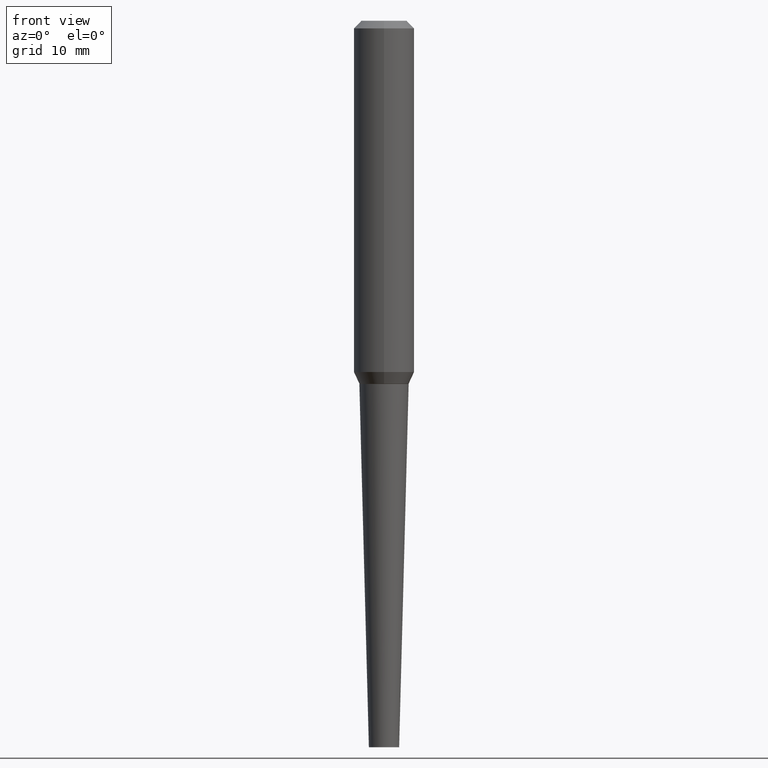
[diagram: clean part render]
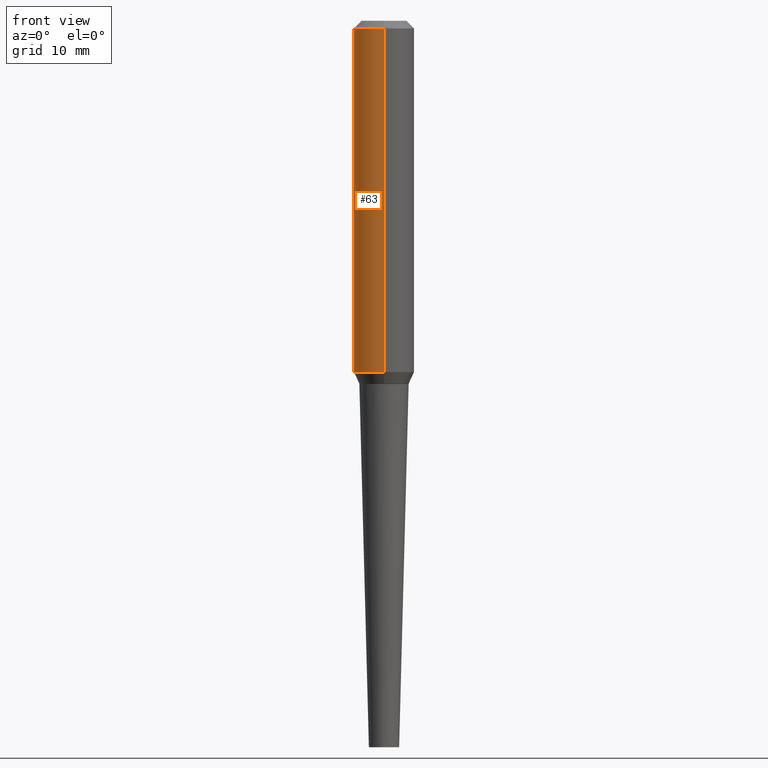
[diagram: same view with one face highlighted and labeled with its STEP entity id]
A machine part, front view. The second image highlights one B-rep face of the part: STEP entity #63.
In plain terms, the highlighted cylindrical surface (edge-blend (fillet) strip) has radius 3.175 mm, axis along (-0, 0, 1).
Its self-contained STEP definition (entity closure, byte-faithful):
#44 = FACE_OUTER_BOUND ( 'NONE', #283, .T. ) ;
#45 = ORIENTED_EDGE ( 'NONE', *, *, #56, .F. ) ;
#51 = DIRECTION ( 'NONE',  ( -6.982962677686265922E-15, -1.000000000000000000, 3.238349681636345134E-15 ) ) ;
#52 = VERTEX_POINT ( 'NONE', #295 ) ;
#56 = EDGE_CURVE ( 'NONE', #125, #52, #374, .T. ) ;
#62 = DIRECTION ( 'NONE',  ( -2.622229697666732842E-29, 3.238349681636345134E-15, 1.000000000000000000 ) ) ;
#63 = ADVANCED_FACE ( 'NONE', ( #44 ), #275, .T. ) ;
#103 = CARTESIAN_POINT ( 'NONE',  ( -3.397982428467408395E-30, -4.866104238714468673E-16, 1.912385453283800096E-17 ) ) ;
#104 = ORIENTED_EDGE ( 'NONE', *, *, #387, .T. ) ;
#113 = DIRECTION ( 'NONE',  ( -2.622229697666732842E-29, 3.238349681636345134E-15, 1.000000000000000000 ) ) ;
#115 = DIRECTION ( 'NONE',  ( -6.982962677686265133E-15, -1.000000000000000000, 2.185478394931408603E-15 ) ) ;
#119 = VERTEX_POINT ( 'NONE', #366 ) ;
#121 = CARTESIAN_POINT ( 'NONE',  ( 8.881784197001425873E-16, 0.1249999999999949069, -1.450202152505693176 ) ) ;
#125 = VERTEX_POINT ( 'NONE', #299 ) ;
#129 = AXIS2_PLACEMENT_3D ( 'NONE', #216, #62, #115 ) ;
#148 = EDGE_CURVE ( 'NONE', #345, #125, #203, .T. ) ;
#180 = DIRECTION ( 'NONE',  ( -2.622229697666732842E-29, 3.238349681636345134E-15, 1.000000000000000000 ) ) ;
#203 = LINE ( 'NONE', #332, #381 ) ;
#210 = CIRCLE ( 'NONE', #129, 0.1250000000000001110 ) ;
#216 = CARTESIAN_POINT ( 'NONE',  ( 3.462964909073907337E-29, -5.182872102746599262E-15, -1.450202152505692732 ) ) ;
#242 = AXIS2_PLACEMENT_3D ( 'NONE', #340, #335, #398 ) ;
#249 = AXIS2_PLACEMENT_3D ( 'NONE', #103, #404, #51 ) ;
#275 = CYLINDRICAL_SURFACE ( 'NONE', #249, 0.1250000000000003053 ) ;
#283 = EDGE_LOOP ( 'NONE', ( #331, #312, #104, #45 ) ) ;
#284 = LINE ( 'NONE', #376, #313 ) ;
#295 = CARTESIAN_POINT ( 'NONE',  ( -8.575622497214472631E-16, -0.1250000000000010825, -0.03124999999999967040 ) ) ;
#299 = CARTESIAN_POINT ( 'NONE',  ( 8.728703347107841277E-16, 0.1249999999999999167, -0.03125000000000047878 ) ) ;
#312 = ORIENTED_EDGE ( 'NONE', *, *, #397, .T. ) ;
#313 = VECTOR ( 'NONE', #180, 39.37007874015748143 ) ;
#331 = ORIENTED_EDGE ( 'NONE', *, *, #148, .F. ) ;
#332 = CARTESIAN_POINT ( 'NONE',  ( 8.881784197001238518E-16, 0.1249999999999998335, -3.856698556717061268E-16 ) ) ;
#335 = DIRECTION ( 'NONE',  ( -2.622229697666732842E-29, 3.238349681636345134E-15, 1.000000000000000000 ) ) ;
#340 = CARTESIAN_POINT ( 'NONE',  ( -2.578535647946551579E-30, -5.878088514225828376E-16, -0.03125000000000007633 ) ) ;
#345 = VERTEX_POINT ( 'NONE', #121 ) ;
#366 = CARTESIAN_POINT ( 'NONE',  ( -8.728703347107494178E-16, -0.1250000000000053013, -1.450202152505692510 ) ) ;
#374 = CIRCLE ( 'NONE', #242, 0.1250000000000004996 ) ;
#376 = CARTESIAN_POINT ( 'NONE',  ( -8.728703347107887622E-16, -0.1250000000000007772, 4.239175647373821287E-16 ) ) ;
#381 = VECTOR ( 'NONE', #113, 39.37007874015748143 ) ;
#387 = EDGE_CURVE ( 'NONE', #119, #52, #284, .T. ) ;
#397 = EDGE_CURVE ( 'NONE', #345, #119, #210, .T. ) ;
#398 = DIRECTION ( 'NONE',  ( -6.982962677686266711E-15, -1.000000000000000000, 3.244069492476299432E-15 ) ) ;
#404 = DIRECTION ( 'NONE',  ( -2.622229697666732842E-29, 3.238349681636345134E-15, 1.000000000000000000 ) ) ;